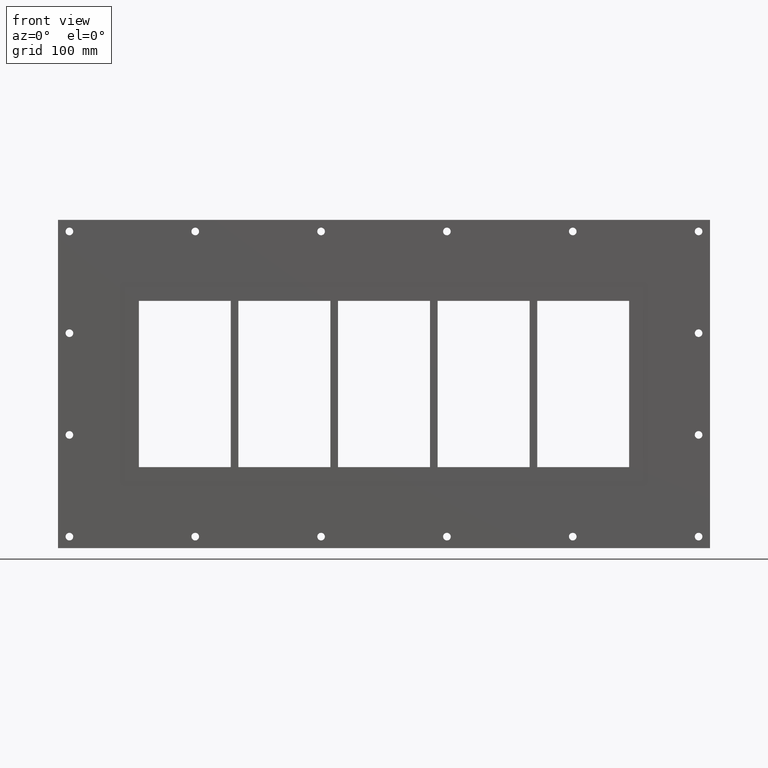
[diagram: clean part render]
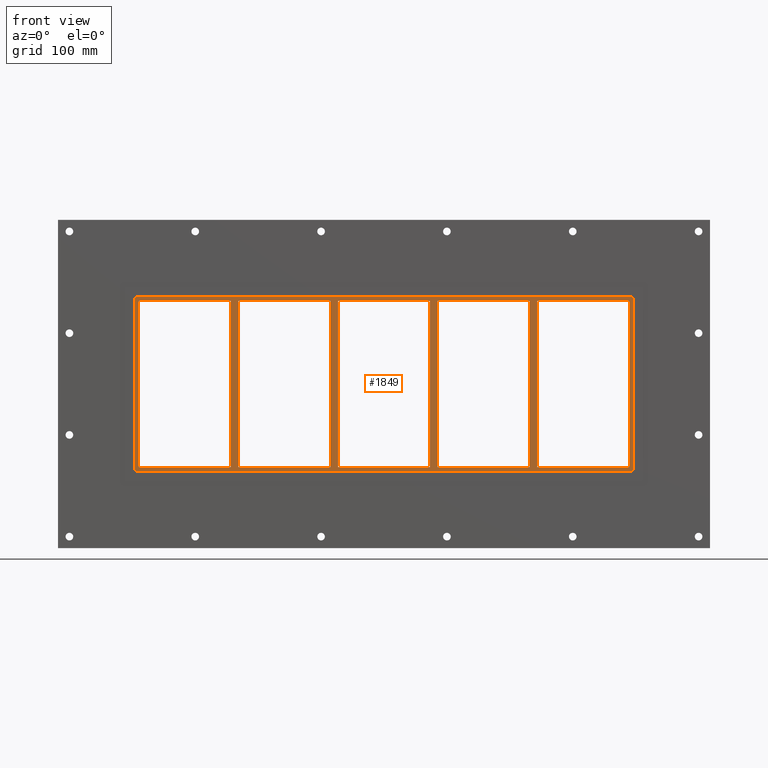
[diagram: same view with one face highlighted and labeled with its STEP entity id]
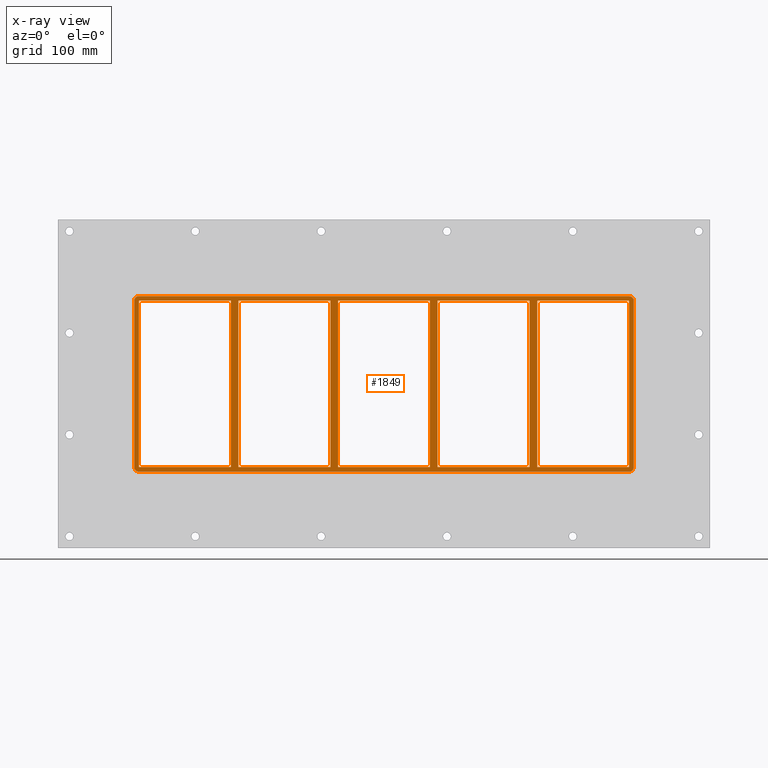
[diagram: x-ray of the same camera — body ghosted, the highlighted face saturated]
A machine part, front view. The second image highlights one B-rep face of the part: STEP entity #1849.
The next image is the same camera in x-ray: the body ghosted, the highlighted face saturated — about 0% of this face is hidden behind the body in this view.
In plain terms, the highlighted planar face has unit normal (0, 1, 0).
Its self-contained STEP definition (entity closure, byte-faithful):
#521=CARTESIAN_POINT('',(190.74999999999861,-3.0,-108.99999999999999));
#522=VERTEX_POINT('',#521);
#523=CARTESIAN_POINT('',(190.74999999999861,-3.0,108.99999999999999));
#524=VERTEX_POINT('',#523);
#525=CARTESIAN_POINT('',(190.74999999999861,-3.0,-108.99999999999999));
#526=DIRECTION('',(0.0,0.0,1.0));
#527=VECTOR('',#526,217.99999999999997);
#528=LINE('',#525,#527);
#529=EDGE_CURVE('',#522,#524,#528,.T.);
#561=CARTESIAN_POINT('',(200.74999999999278,-3.0,108.99999999999999));
#562=VERTEX_POINT('',#561);
#563=CARTESIAN_POINT('',(200.74999999999278,-3.0,-108.99999999998421));
#564=VERTEX_POINT('',#563);
#565=CARTESIAN_POINT('',(200.74999999999278,-3.0,108.99999999999999));
#566=DIRECTION('',(0.0,0.0,-1.0));
#567=VECTOR('',#566,217.9999999999842);
#568=LINE('',#565,#567);
#569=EDGE_CURVE('',#562,#564,#568,.T.);
#601=CARTESIAN_POINT('',(60.249999999998565,-3.0,-108.99999999999999));
#602=VERTEX_POINT('',#601);
#603=CARTESIAN_POINT('',(60.249999999998565,-3.0,108.99999999999999));
#604=VERTEX_POINT('',#603);
#605=CARTESIAN_POINT('',(60.249999999998565,-3.0,-108.99999999999999));
#606=DIRECTION('',(0.0,0.0,1.0));
#607=VECTOR('',#606,217.99999999999997);
#608=LINE('',#605,#607);
#609=EDGE_CURVE('',#602,#604,#608,.T.);
#641=CARTESIAN_POINT('',(70.249999999992738,-3.0,108.99999999999999));
#642=VERTEX_POINT('',#641);
#643=CARTESIAN_POINT('',(70.249999999992738,-3.0,-108.99999999998421));
#644=VERTEX_POINT('',#643);
#645=CARTESIAN_POINT('',(70.249999999992738,-3.0,108.99999999999999));
#646=DIRECTION('',(0.0,0.0,-1.0));
#647=VECTOR('',#646,217.9999999999842);
#648=LINE('',#645,#647);
#649=EDGE_CURVE('',#642,#644,#648,.T.);
#681=CARTESIAN_POINT('',(-70.25000000000145,-3.0,-108.99999999999999));
#682=VERTEX_POINT('',#681);
#683=CARTESIAN_POINT('',(-70.25000000000145,-3.0,108.99999999999999));
#684=VERTEX_POINT('',#683);
#685=CARTESIAN_POINT('',(-70.25000000000145,-3.0,-108.99999999999999));
#686=DIRECTION('',(0.0,0.0,1.0));
#687=VECTOR('',#686,217.99999999999997);
#688=LINE('',#685,#687);
#689=EDGE_CURVE('',#682,#684,#688,.T.);
#721=CARTESIAN_POINT('',(-60.250000000007269,-3.0,108.99999999999999));
#722=VERTEX_POINT('',#721);
#723=CARTESIAN_POINT('',(-60.250000000007269,-3.0,-108.99999999998421));
#724=VERTEX_POINT('',#723);
#725=CARTESIAN_POINT('',(-60.250000000007269,-3.0,108.99999999999999));
#726=DIRECTION('',(0.0,0.0,-1.0));
#727=VECTOR('',#726,217.9999999999842);
#728=LINE('',#725,#727);
#729=EDGE_CURVE('',#722,#724,#728,.T.);
#770=CARTESIAN_POINT('',(-190.75000000000728,-3.0,-108.99999999998421));
#771=VERTEX_POINT('',#770);
#778=CARTESIAN_POINT('',(-70.25000000000145,-3.0,-108.99999999999999));
#779=DIRECTION('',(-1.0,0.0,0.0));
#780=VECTOR('',#779,120.5000000000058);
#781=LINE('',#778,#780);
#782=EDGE_CURVE('',#682,#771,#781,.T.);
#800=CARTESIAN_POINT('',(60.24999999999855,-3.0,-108.99999999999999));
#801=DIRECTION('',(-1.0,0.0,0.0));
#802=VECTOR('',#801,120.50000000000583);
#803=LINE('',#800,#802);
#804=EDGE_CURVE('',#602,#724,#803,.T.);
#822=CARTESIAN_POINT('',(190.74999999999861,-3.0,-108.99999999999999));
#823=DIRECTION('',(-1.0,0.0,0.0));
#824=VECTOR('',#823,120.50000000000588);
#825=LINE('',#822,#824);
#826=EDGE_CURVE('',#522,#644,#825,.T.);
#837=CARTESIAN_POINT('',(321.25000000000006,-3.0,-108.99999999999999));
#838=VERTEX_POINT('',#837);
#839=CARTESIAN_POINT('',(321.25000000000006,-3.0,-108.99999999999999));
#840=DIRECTION('',(-1.0,0.0,0.0));
#841=VECTOR('',#840,120.50000000000728);
#842=LINE('',#839,#841);
#843=EDGE_CURVE('',#838,#564,#842,.T.);
#868=CARTESIAN_POINT('',(-190.75000000000728,-3.0,108.99999999999999));
#869=VERTEX_POINT('',#868);
#870=CARTESIAN_POINT('',(-190.75000000000728,-3.0,109.0));
#871=DIRECTION('',(1.0,0.0,0.0));
#872=VECTOR('',#871,120.50000000000584);
#873=LINE('',#870,#872);
#874=EDGE_CURVE('',#869,#684,#873,.T.);
#899=CARTESIAN_POINT('',(-60.250000000007262,-3.0,109.0));
#900=DIRECTION('',(1.0,0.0,0.0));
#901=VECTOR('',#900,120.50000000000584);
#902=LINE('',#899,#901);
#903=EDGE_CURVE('',#722,#604,#902,.T.);
#929=CARTESIAN_POINT('',(321.25000000000006,-3.0,108.99999999999999));
#930=VERTEX_POINT('',#929);
#937=CARTESIAN_POINT('',(200.74999999999275,-3.0,109.0));
#938=DIRECTION('',(1.0,0.0,0.0));
#939=VECTOR('',#938,120.50000000000736);
#940=LINE('',#937,#939);
#941=EDGE_CURVE('',#562,#930,#940,.T.);
#952=CARTESIAN_POINT('',(70.249999999992752,-3.0,109.0));
#953=DIRECTION('',(1.0,0.0,0.0));
#954=VECTOR('',#953,120.50000000000585);
#955=LINE('',#952,#954);
#956=EDGE_CURVE('',#642,#524,#955,.T.);
#973=CARTESIAN_POINT('',(-200.75000000000145,-3.0,-108.99999999999999));
#974=VERTEX_POINT('',#973);
#975=CARTESIAN_POINT('',(-200.75000000000145,-3.0,108.99999999999999));
#976=VERTEX_POINT('',#975);
#977=CARTESIAN_POINT('',(-200.75000000000145,-3.0,-108.99999999999999));
#978=DIRECTION('',(0.0,0.0,1.0));
#979=VECTOR('',#978,217.99999999999997);
#980=LINE('',#977,#979);
#981=EDGE_CURVE('',#974,#976,#980,.T.);
#1013=CARTESIAN_POINT('',(-190.75000000000728,-3.0,108.99999999999999));
#1014=DIRECTION('',(0.0,0.0,-1.0));
#1015=VECTOR('',#1014,217.9999999999842);
#1016=LINE('',#1013,#1015);
#1017=EDGE_CURVE('',#869,#771,#1016,.T.);
#1044=CARTESIAN_POINT('',(-321.25000000000006,-3.0,-108.99999999999999));
#1045=VERTEX_POINT('',#1044);
#1052=CARTESIAN_POINT('',(-200.75000000000145,-3.0,-108.99999999999999));
#1053=DIRECTION('',(-1.0,0.0,0.0));
#1054=VECTOR('',#1053,120.49999999999866);
#1055=LINE('',#1052,#1054);
#1056=EDGE_CURVE('',#974,#1045,#1055,.T.);
#1067=CARTESIAN_POINT('',(-321.25000000000006,-3.0,108.99999999999999));
#1068=VERTEX_POINT('',#1067);
#1069=CARTESIAN_POINT('',(-321.25000000000006,-3.0,109.0));
#1070=DIRECTION('',(1.0,0.0,0.0));
#1071=VECTOR('',#1070,120.49999999999861);
#1072=LINE('',#1069,#1071);
#1073=EDGE_CURVE('',#1068,#976,#1072,.T.);
#1489=CARTESIAN_POINT('',(-321.25000000000006,-3.0,-108.99999999999999));
#1490=DIRECTION('',(0.0,0.0,1.0));
#1491=VECTOR('',#1490,217.99999999999994);
#1492=LINE('',#1489,#1491);
#1493=EDGE_CURVE('',#1045,#1068,#1492,.T.);
#1504=CARTESIAN_POINT('',(321.24999999999994,-3.0,115.0));
#1505=VERTEX_POINT('',#1504);
#1512=CARTESIAN_POINT('',(327.25,-3.0,109.0));
#1513=VERTEX_POINT('',#1512);
#1514=CARTESIAN_POINT('',(321.25,-3.0,109.0));
#1515=DIRECTION('',(0.0,1.0,0.0));
#1516=DIRECTION('',(0.707106781186545,0.0,0.70710678118655));
#1517=AXIS2_PLACEMENT_3D('',#1514,#1515,#1516);
#1518=CIRCLE('',#1517,6.000000000000001);
#1519=EDGE_CURVE('',#1505,#1513,#1518,.T.);
#1569=CARTESIAN_POINT('',(327.25,-3.0,-108.99999999999999));
#1570=VERTEX_POINT('',#1569);
#1571=CARTESIAN_POINT('',(327.25,-3.0,-109.0));
#1572=DIRECTION('',(0.0,0.0,1.0));
#1573=VECTOR('',#1572,218.0);
#1574=LINE('',#1571,#1573);
#1575=EDGE_CURVE('',#1570,#1513,#1574,.T.);
#1616=CARTESIAN_POINT('',(-321.25,-3.0,115.0));
#1617=VERTEX_POINT('',#1616);
#1624=CARTESIAN_POINT('',(321.25,-3.0,115.0));
#1625=DIRECTION('',(-1.0,0.0,0.0));
#1626=VECTOR('',#1625,642.5);
#1627=LINE('',#1624,#1626);
#1628=EDGE_CURVE('',#1505,#1617,#1627,.T.);
#1641=CARTESIAN_POINT('',(321.25,-3.0,-115.0));
#1642=VERTEX_POINT('',#1641);
#1643=CARTESIAN_POINT('',(321.25,-3.0,-108.99999999999999));
#1644=DIRECTION('',(0.0,1.0,0.0));
#1645=DIRECTION('',(0.707106781186543,0.0,-0.707106781186552));
#1646=AXIS2_PLACEMENT_3D('',#1643,#1644,#1645);
#1647=CIRCLE('',#1646,6.000000000000001);
#1648=EDGE_CURVE('',#1570,#1642,#1647,.T.);
#1690=CARTESIAN_POINT('',(-327.25,-3.0,108.99999999999999));
#1691=VERTEX_POINT('',#1690);
#1698=CARTESIAN_POINT('',(-321.25,-3.0,108.99999999999999));
#1699=DIRECTION('',(0.0,1.0,0.0));
#1700=DIRECTION('',(-0.707106781186543,0.0,0.707106781186552));
#1701=AXIS2_PLACEMENT_3D('',#1698,#1699,#1700);
#1702=CIRCLE('',#1701,6.000000000000001);
#1703=EDGE_CURVE('',#1691,#1617,#1702,.T.);
#1716=CARTESIAN_POINT('',(-321.24999999999994,-3.0,-115.0));
#1717=VERTEX_POINT('',#1716);
#1718=CARTESIAN_POINT('',(-321.25,-3.0,-115.0));
#1719=DIRECTION('',(1.0,0.0,0.0));
#1720=VECTOR('',#1719,642.5);
#1721=LINE('',#1718,#1720);
#1722=EDGE_CURVE('',#1717,#1642,#1721,.T.);
#1763=CARTESIAN_POINT('',(-327.25,-3.0,-108.99999999999999));
#1764=VERTEX_POINT('',#1763);
#1771=CARTESIAN_POINT('',(-327.25,-3.0,109.0));
#1772=DIRECTION('',(0.0,0.0,-1.0));
#1773=VECTOR('',#1772,218.0);
#1774=LINE('',#1771,#1773);
#1775=EDGE_CURVE('',#1691,#1764,#1774,.T.);
#1788=CARTESIAN_POINT('',(-321.25,-3.0,-108.99999999999999));
#1789=DIRECTION('',(0.0,1.0,0.0));
#1790=DIRECTION('',(-0.707106781186543,0.0,-0.707106781186552));
#1791=AXIS2_PLACEMENT_3D('',#1788,#1789,#1790);
#1792=CIRCLE('',#1791,6.000000000000001);
#1793=EDGE_CURVE('',#1717,#1764,#1792,.T.);
#1799=CARTESIAN_POINT('',(0.0,-3.0,0.0));
#1800=DIRECTION('',(0.0,1.0,0.0));
#1801=DIRECTION('',(0.0,0.0,1.0));
#1802=AXIS2_PLACEMENT_3D('',#1799,#1800,#1801);
#1803=PLANE('',#1802);
#1804=ORIENTED_EDGE('',*,*,#1648,.F.);
#1805=ORIENTED_EDGE('',*,*,#1575,.T.);
#1806=ORIENTED_EDGE('',*,*,#1519,.F.);
#1807=ORIENTED_EDGE('',*,*,#1628,.T.);
#1808=ORIENTED_EDGE('',*,*,#1703,.F.);
#1809=ORIENTED_EDGE('',*,*,#1775,.T.);
#1810=ORIENTED_EDGE('',*,*,#1793,.F.);
#1811=ORIENTED_EDGE('',*,*,#1722,.T.);
#1812=EDGE_LOOP('',(#1804,#1805,#1806,#1807,#1808,#1809,#1810,#1811));
#1813=FACE_OUTER_BOUND('',#1812,.T.);
#1814=ORIENTED_EDGE('',*,*,#826,.T.);
#1815=ORIENTED_EDGE('',*,*,#649,.F.);
#1816=ORIENTED_EDGE('',*,*,#956,.T.);
#1817=ORIENTED_EDGE('',*,*,#529,.F.);
#1818=EDGE_LOOP('',(#1814,#1815,#1816,#1817));
#1819=FACE_BOUND('',#1818,.T.);
#1820=ORIENTED_EDGE('',*,*,#804,.T.);
#1821=ORIENTED_EDGE('',*,*,#729,.F.);
#1822=ORIENTED_EDGE('',*,*,#903,.T.);
#1823=ORIENTED_EDGE('',*,*,#609,.F.);
#1824=EDGE_LOOP('',(#1820,#1821,#1822,#1823));
#1825=FACE_BOUND('',#1824,.T.);
#1826=ORIENTED_EDGE('',*,*,#782,.T.);
#1827=ORIENTED_EDGE('',*,*,#1017,.F.);
#1828=ORIENTED_EDGE('',*,*,#874,.T.);
#1829=ORIENTED_EDGE('',*,*,#689,.F.);
#1830=EDGE_LOOP('',(#1826,#1827,#1828,#1829));
#1831=FACE_BOUND('',#1830,.T.);
#1832=ORIENTED_EDGE('',*,*,#1056,.T.);
#1833=ORIENTED_EDGE('',*,*,#1493,.T.);
#1834=ORIENTED_EDGE('',*,*,#1073,.T.);
#1835=ORIENTED_EDGE('',*,*,#981,.F.);
#1836=EDGE_LOOP('',(#1832,#1833,#1834,#1835));
#1837=FACE_BOUND('',#1836,.T.);
#1838=ORIENTED_EDGE('',*,*,#569,.F.);
#1839=ORIENTED_EDGE('',*,*,#941,.T.);
#1840=CARTESIAN_POINT('',(321.25000000000006,-3.0,108.99999999999999));
#1841=DIRECTION('',(0.0,0.0,-1.0));
#1842=VECTOR('',#1841,217.99999999999994);
#1843=LINE('',#1840,#1842);
#1844=EDGE_CURVE('',#930,#838,#1843,.T.);
#1845=ORIENTED_EDGE('',*,*,#1844,.T.);
#1846=ORIENTED_EDGE('',*,*,#843,.T.);
#1847=EDGE_LOOP('',(#1838,#1839,#1845,#1846));
#1848=FACE_BOUND('',#1847,.T.);
#1849=ADVANCED_FACE('',(#1813,#1819,#1825,#1831,#1837,#1848),#1803,.F.);